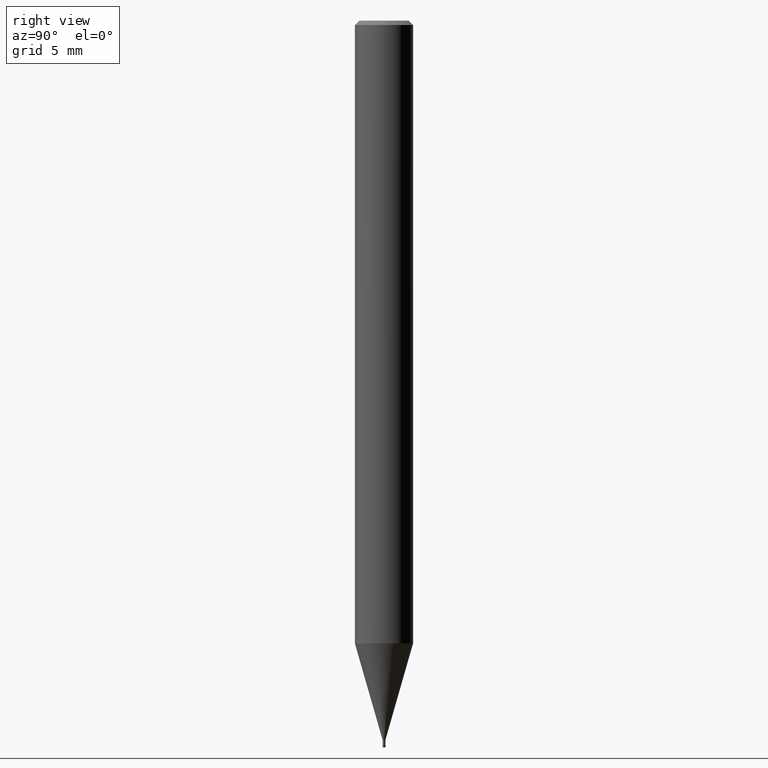
[diagram: clean part render]
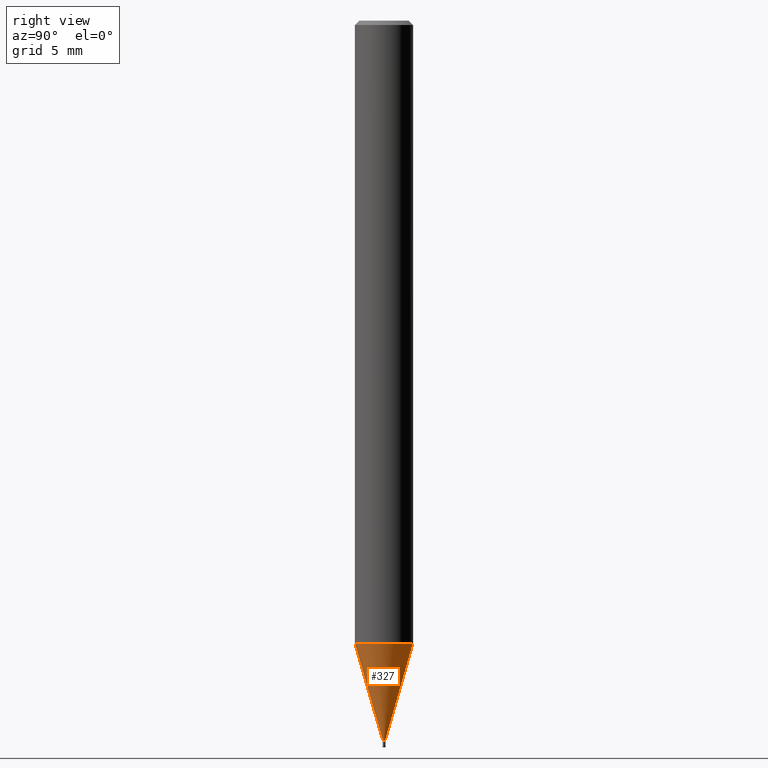
[diagram: same view with one face highlighted and labeled with its STEP entity id]
A machine part, right view. The second image highlights one B-rep face of the part: STEP entity #327.
In plain terms, the highlighted conical surface has half-angle 16.001 deg.
Its self-contained STEP definition (entity closure, byte-faithful):
#143=VERTEX_POINT('',#378);
#163=VERTEX_POINT('',#401);
#169=VERTEX_POINT('',#407);
#203=EDGE_CURVE('',#169,#163,#446,.T.);
#235=EDGE_CURVE('',#143,#163,#482,.T.);
#253=VERTEX_POINT('',#504);
#255=EDGE_CURVE('',#253,#143,#506,.T.);
#257=EDGE_CURVE('',#169,#253,#508,.T.);
#327=ADVANCED_FACE('',(#587),#588,.T.);
#378=CARTESIAN_POINT('',(1.13214857410879E-017,-0.09245,-49.49));
#401=CARTESIAN_POINT('',(2.44915147732706E-016,-1.99995,-42.838));
#407=CARTESIAN_POINT('',(0.0,1.99995,-42.838));
#446=CIRCLE('',#719,1.99995);
#482=LINE('',#767,#768);
#504=CARTESIAN_POINT('',(0.0,0.09245,-49.49));
#506=CIRCLE('',#795,0.09245);
#508=LINE('',#798,#799);
#587=FACE_OUTER_BOUND('',#901,.T.);
#588=CONICAL_SURFACE('',#902,1.0462,0.279262361421134);
#719=AXIS2_PLACEMENT_3D('',#1020,#1021,#1022);
#767=CARTESIAN_POINT('',(1.28118316736897E-016,-1.0462,-46.164));
#768=VECTOR('',#1069,1.0);
#795=AXIS2_PLACEMENT_3D('',#1101,#1102,#1103);
#798=CARTESIAN_POINT('',(-1.28118316736897E-016,1.0462,-46.164));
#799=VECTOR('',#1104,1.0);
#901=EDGE_LOOP('',(#1209,#1210,#1211,#1212));
#902=AXIS2_PLACEMENT_3D('',#1213,#1214,#1215);
#1020=CARTESIAN_POINT('',(0.0,0.0,-42.838));
#1021=DIRECTION('',(0.0,0.0,-1.0));
#1022=DIRECTION('',(0.0,1.0,0.0));
#1069=DIRECTION('',(3.37558653544073E-017,-0.275646661876649,0.961259027419904));
#1101=CARTESIAN_POINT('',(0.0,0.0,-49.49));
#1102=DIRECTION('',(0.0,0.0,-1.0));
#1103=DIRECTION('',(0.0,1.0,0.0));
#1104=DIRECTION('',(3.37558653544073E-017,-0.275646661876649,-0.961259027419904));
#1209=ORIENTED_EDGE('',*,*,#257,.F.);
#1210=ORIENTED_EDGE('',*,*,#203,.T.);
#1211=ORIENTED_EDGE('',*,*,#235,.F.);
#1212=ORIENTED_EDGE('',*,*,#255,.F.);
#1213=CARTESIAN_POINT('',(0.0,0.0,-46.164));
#1214=DIRECTION('',(-0.0,-0.0,1.0));
#1215=DIRECTION('',(0.0,1.0,0.0));